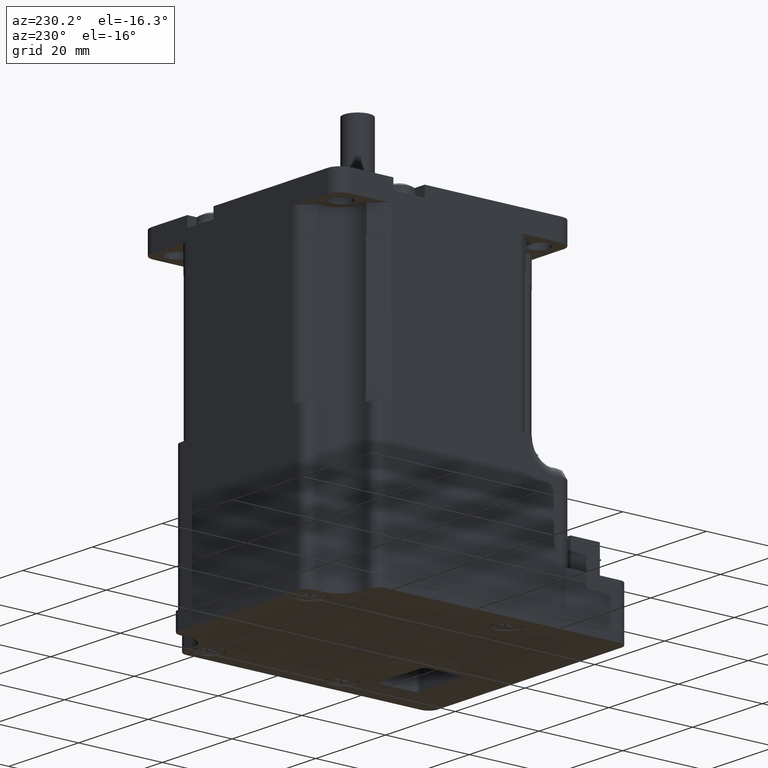
[diagram: clean part render]
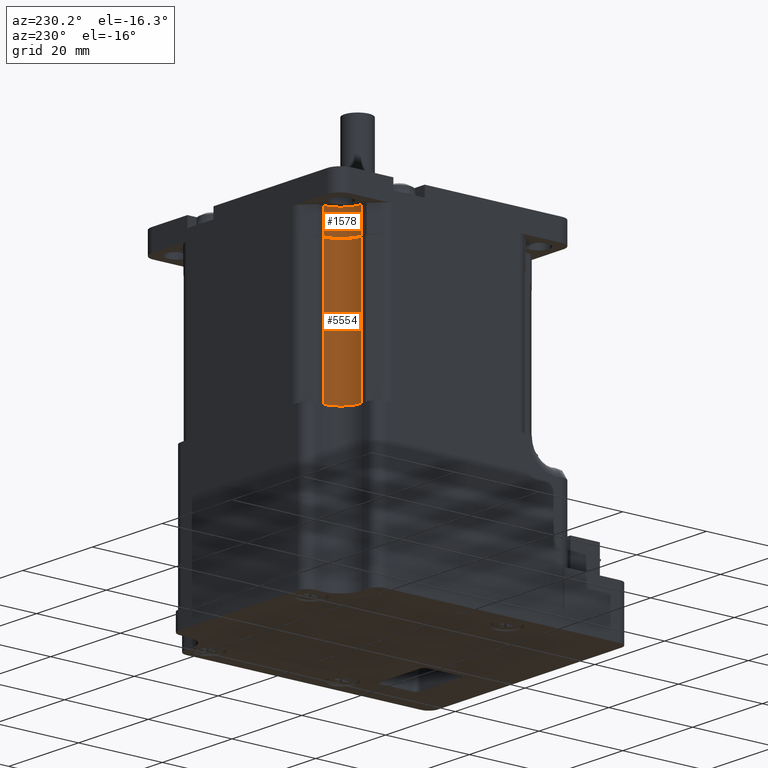
[diagram: same view with one multi-face feature highlighted, each face labeled with its STEP entity id]
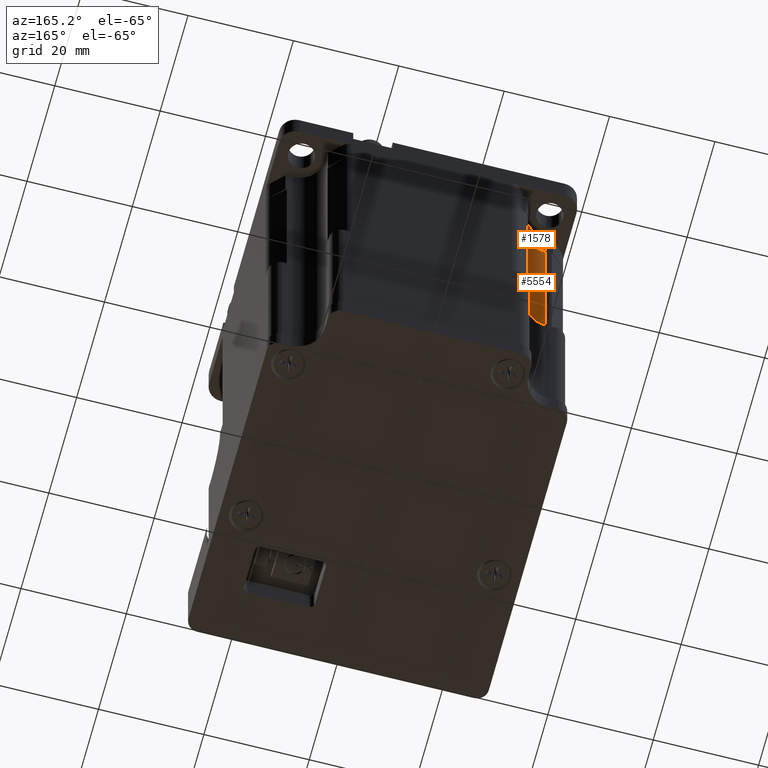
[diagram: same view with one multi-face feature highlighted, each face labeled with its STEP entity id]
A machine part, auxiliary view. The highlighted faces form ONE feature: a constant-radius fillet chain: 2 tangent blend faces with common blend radius 5 mm. The faces share edges in the B-rep.
A second angle (auxiliary view) of the same feature is appended — it is thin or edge-on in the first view.
Their STEP definitions:
[1] entity #1578 (Cylinder):
#1436=CARTESIAN_POINT('',(-18.999999999999993,24.000000000000007,6.000000000000002));
#1437=VERTEX_POINT('',#1436);
#1444=CARTESIAN_POINT('',(-23.999999999999993,19.000000000000007,6.000000000000002));
#1445=VERTEX_POINT('',#1444);
#1446=CARTESIAN_POINT('',(-23.999999999999993,24.000000000000007,6.000000000000002));
#1447=DIRECTION('',(0.0,0.0,-1.0));
#1448=DIRECTION('',(1.0,0.0,0.0));
#1449=AXIS2_PLACEMENT_3D('',#1446,#1447,#1448);
#1450=CIRCLE('',#1449,5.0);
#1451=EDGE_CURVE('',#1437,#1445,#1450,.T.);
#1528=CARTESIAN_POINT('',(-23.999999999999993,19.000000000000007,0.0));
#1529=VERTEX_POINT('',#1528);
#1530=CARTESIAN_POINT('',(-23.999999999999993,19.000000000000007,0.0));
#1531=DIRECTION('',(0.0,0.0,1.0));
#1532=VECTOR('',#1531,6.000000000000002);
#1533=LINE('',#1530,#1532);
#1534=EDGE_CURVE('',#1529,#1445,#1533,.T.);
#1554=CARTESIAN_POINT('',(-23.999999999999993,24.000000000000007,0.0));
#1555=DIRECTION('',(0.0,0.0,1.0));
#1556=DIRECTION('',(1.0,0.0,0.0));
#1557=AXIS2_PLACEMENT_3D('',#1554,#1555,#1556);
#1558=CYLINDRICAL_SURFACE('',#1557,5.0);
#1559=ORIENTED_EDGE('',*,*,#1451,.F.);
#1560=CARTESIAN_POINT('',(-18.999999999999993,24.000000000000007,0.0));
#1561=VERTEX_POINT('',#1560);
#1562=CARTESIAN_POINT('',(-18.999999999999993,24.000000000000007,0.0));
#1563=DIRECTION('',(0.0,0.0,1.0));
#1564=VECTOR('',#1563,6.000000000000002);
#1565=LINE('',#1562,#1564);
#1566=EDGE_CURVE('',#1561,#1437,#1565,.T.);
#1567=ORIENTED_EDGE('',*,*,#1566,.F.);
#1568=CARTESIAN_POINT('',(-23.999999999999993,24.000000000000007,0.0));
#1569=DIRECTION('',(0.0,0.0,1.0));
#1570=DIRECTION('',(1.0,0.0,0.0));
#1571=AXIS2_PLACEMENT_3D('',#1568,#1569,#1570);
#1572=CIRCLE('',#1571,5.0);
#1573=EDGE_CURVE('',#1529,#1561,#1572,.T.);
#1574=ORIENTED_EDGE('',*,*,#1573,.F.);
#1575=ORIENTED_EDGE('',*,*,#1534,.T.);
#1576=EDGE_LOOP('',(#1559,#1567,#1574,#1575));
#1577=FACE_OUTER_BOUND('',#1576,.T.);
#1578=ADVANCED_FACE('',(#1577),#1558,.F.);
[2] entity #5554 (Cylinder):
#186=CARTESIAN_POINT('',(-24.000000000000004,19.000000000000007,-32.0));
#187=VERTEX_POINT('',#186);
#194=CARTESIAN_POINT('',(-19.0,24.000000000000007,-32.0));
#195=VERTEX_POINT('',#194);
#196=CARTESIAN_POINT('',(-24.000000000000004,24.000000000000014,-32.0));
#197=DIRECTION('',(0.0,0.0,1.0));
#198=DIRECTION('',(-1.0,0.0,0.0));
#199=AXIS2_PLACEMENT_3D('',#196,#197,#198);
#200=CIRCLE('',#199,5.0);
#201=EDGE_CURVE('',#187,#195,#200,.T.);
#1528=CARTESIAN_POINT('',(-23.999999999999993,19.000000000000007,0.0));
#1529=VERTEX_POINT('',#1528);
#1560=CARTESIAN_POINT('',(-18.999999999999993,24.000000000000007,0.0));
#1561=VERTEX_POINT('',#1560);
#1568=CARTESIAN_POINT('',(-23.999999999999993,24.000000000000007,0.0));
#1569=DIRECTION('',(0.0,0.0,1.0));
#1570=DIRECTION('',(1.0,0.0,0.0));
#1571=AXIS2_PLACEMENT_3D('',#1568,#1569,#1570);
#1572=CIRCLE('',#1571,5.0);
#1573=EDGE_CURVE('',#1529,#1561,#1572,.T.);
#5494=CARTESIAN_POINT('',(-24.000000000000004,19.000000000000004,-7.105427E-015));
#5495=DIRECTION('',(0.0,0.0,-1.0));
#5496=VECTOR('',#5495,31.999999999999993);
#5497=LINE('',#5494,#5496);
#5498=EDGE_CURVE('',#1529,#187,#5497,.T.);
#5531=CARTESIAN_POINT('',(-19.0,24.000000000000014,0.0));
#5532=DIRECTION('',(0.0,0.0,-1.0));
#5533=VECTOR('',#5532,32.0);
#5534=LINE('',#5531,#5533);
#5535=EDGE_CURVE('',#1561,#195,#5534,.T.);
#5543=CARTESIAN_POINT('',(-24.000000000000007,24.000000000000004,0.0));
#5544=DIRECTION('',(0.0,0.0,-1.0));
#5545=DIRECTION('',(0.0,1.0,0.0));
#5546=AXIS2_PLACEMENT_3D('',#5543,#5544,#5545);
#5547=CYLINDRICAL_SURFACE('',#5546,5.0);
#5548=ORIENTED_EDGE('',*,*,#5498,.F.);
#5549=ORIENTED_EDGE('',*,*,#1573,.T.);
#5550=ORIENTED_EDGE('',*,*,#5535,.T.);
#5551=ORIENTED_EDGE('',*,*,#201,.F.);
#5552=EDGE_LOOP('',(#5548,#5549,#5550,#5551));
#5553=FACE_OUTER_BOUND('',#5552,.T.);
#5554=ADVANCED_FACE('',(#5553),#5547,.F.);